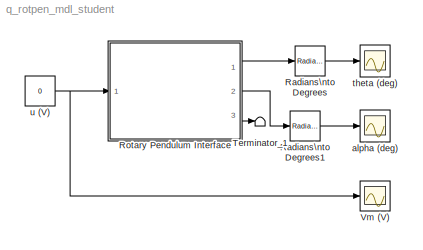
MODEL q_rotpen_mdl_student
KIND model
CONFIG PostLoadFcn = qc_set_target_type(getConfigSet(bdroot, 'QUARC Default Target Configuration'));
BLOCK [Reference] Radians\nto Degrees  REF=simulink_extras/Transformations/Radians\nto Degrees
  Ports = [1, 1]
  SID = 2
  SourceBlock = simulink_extras/Transformations/Radians\nto Degrees
  SourceProductBaseCode = SL
  SourceProductName = Simulink
  SourceType = RadiansToDegrees
BLOCK [Reference] Radians\nto Degrees1  REF=simulink_extras/Transformations/Radians\nto Degrees
  Ports = [1, 1]
  SID = 3
  SourceBlock = simulink_extras/Transformations/Radians\nto Degrees
  SourceProductBaseCode = SL
  SourceProductName = Simulink
  SourceType = RadiansToDegrees
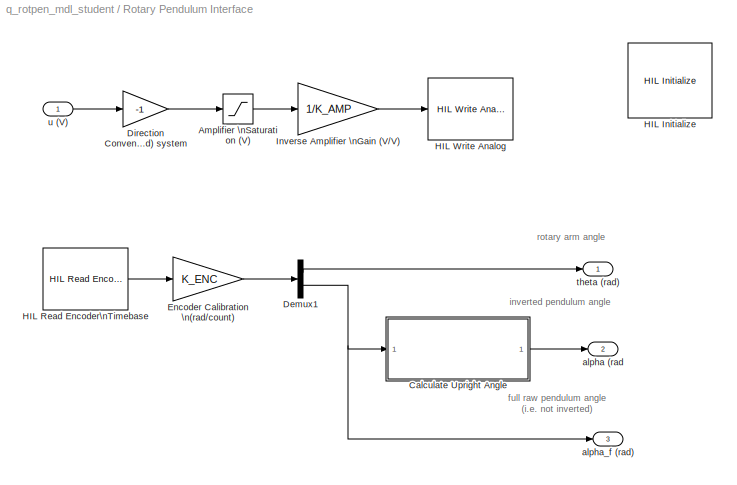
BLOCK [SubSystem] Rotary Pendulum Interface
  Ports = [1, 3]
  RequestExecContextInheritance = off
  SID = 36
BLOCK [Saturate] Rotary Pendulum Interface/Amplifier \nSaturation (V)
  InputPortMap = u0
  LowerLimit = -5
  Ports = [1, 1]
  SID = 38
  UpperLimit = 5
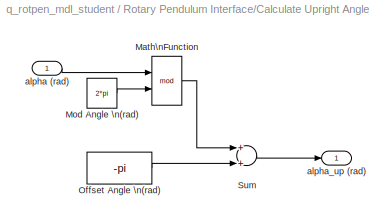
BLOCK [SubSystem] Rotary Pendulum Interface/Calculate Upright Angle
  Ports = [1, 1]
  RequestExecContextInheritance = off
  SID = 39
BLOCK [Math] Rotary Pendulum Interface/Calculate Upright Angle/Math\nFunction
  Operator = mod
  Ports = [2, 1]
  SID = 41
BLOCK [Constant] Rotary Pendulum Interface/Calculate Upright Angle/Mod Angle \n(rad)
  SID = 42
  Value = 2*pi
BLOCK [Constant] Rotary Pendulum Interface/Calculate Upright Angle/Offset Angle \n(rad)
  SID = 43
  Value = -pi
BLOCK [Sum] Rotary Pendulum Interface/Calculate Upright Angle/Sum
  Ports = [2, 1]
  SID = 44
BLOCK [Inport] Rotary Pendulum Interface/Calculate Upright Angle/alpha (rad)
  IconDisplay = Port number
  SID = 40
BLOCK [Outport] Rotary Pendulum Interface/Calculate Upright Angle/alpha_up (rad)
  IconDisplay = Port number
  SID = 45
BLOCK [Demux] Rotary Pendulum Interface/Demux1
  DisplayOption = bar
  Outputs = 2
  Ports = [1, 2]
  SID = 46
BLOCK [Gain] Rotary Pendulum Interface/Direction Convention:\n(Right-Hand) system
  Gain = -1
  SID = 47
BLOCK [Gain] Rotary Pendulum Interface/Encoder Calibration \n(rad//count)
  Gain = K_ENC
  SID = 48
BLOCK [Reference] Rotary Pendulum Interface/HIL Initialize  REF=quarc_library/Data Acquisition/Generic/Configuration/HIL Initialize
  AttributesFormatString = %<object_name> (%<board_type>-%<board_number>)
  MultiThreadCoSim = auto
  Ports = []
  SID = 49
  SourceBlock = quarc_library/Data Acquisition/Generic/Configuration/HIL Initialize
  SourceProductName = QUARC Targets
  SourceType = HIL Initialize
  UserData = DataTag0
  UserDataPersistent = on
  active = off
  analog_input_channels = [0:1]
  analog_input_configurations = []
  analog_input_maximums = 10
  analog_input_minimums = -10
  analog_output_channels = [0:1]
  analog_output_maximums = 10
  analog_output_minimums = -10
  board_number = 0
  board_options = d0=digital;d1=digital;led=auto;update_rate=normal;decimation=1
  board_type = q2_usb
  clock_modes = []
  digital_input_channels = []
  digital_output_channels = []
  digital_output_configuration = []
  encoder_channels = [0:1]
  encoder_filter_frequency = []
  exclusive = off
  final_analog_outputs = [0]
  final_digital_outputs = [1]
  final_other_outputs = []
  final_pwm_outputs = [0]
  hardware_clocks = [0]
  initial_analog_outputs = [0]
  initial_clock_frequencies = []
  initial_digital_outputs = [1]
  initial_encoder_counts = [0]
  initial_other_outputs = []
  initial_pwm_outputs = [0]
  object_name = HIL-1
  other_output_channels = []
  pwm_alignment = []
  pwm_channels = []
  pwm_configuration = []
  pwm_frequency = 1/0.020
  pwm_leading_deadband = []
  pwm_modes = [0]
  pwm_polarity = []
  pwm_trailing_deadband = []
  quadrature = [4]
  set_analog_input_params_at_start = on
  set_analog_input_params_at_switch_in = off
  set_analog_output_params_at_start = on
  set_analog_output_params_at_switch_in = off
  set_analog_outputs_at_start = on
  set_analog_outputs_at_switch_in = off
  set_analog_outputs_at_switch_out = off
  set_analog_outputs_at_terminate = on
  set_analog_outputs_on_watchdog = off
  set_clock_frequencies_at_start = off
  set_clock_frequencies_at_switch_in = off
  set_clock_params_at_start = off
  set_clock_params_at_switch_in = off
  set_digital_output_params_at_start = off
  set_digital_output_params_at_switch_in = off
  set_digital_outputs_at_start = on
  set_digital_outputs_at_switch_in = off
  set_digital_outputs_at_switch_out = off
  set_digital_outputs_at_terminate = on
  set_digital_outputs_on_watchdog = off
  set_encoder_counts_at_start = on
  set_encoder_counts_at_switch_in = off
  set_encoder_params_at_start = on
  set_encoder_params_at_switch_in = off
  set_other_outputs_at_start = off
  set_other_outputs_at_switch_in = off
  set_other_outputs_at_switch_out = off
  set_other_outputs_at_terminate = off
  set_other_outputs_on_watchdog = off
  set_pwm_outputs_at_start = on
  set_pwm_outputs_at_switch_in = off
  set_pwm_outputs_at_switch_out = off
  set_pwm_outputs_at_terminate = on
  set_pwm_outputs_on_watchdog = off
  set_pwm_params_at_start = on
  set_pwm_params_at_switch_in = off
  watchdog_analog_outputs = 0
  watchdog_digital_outputs = [1]
  watchdog_other_outputs = []
  watchdog_pwm_outputs = [0]
BLOCK [Reference] Rotary Pendulum Interface/HIL Read Encoder\nTimebase  REF=quarc_library/Data Acquisition/Generic/Timebases/HIL Read Encoder\nTimebase
  AttributesFormatString = (%<object_name>)
  MultiThreadCoSim = auto
  Ports = [0, 1]
  SID = 50
  SourceBlock = quarc_library/Data Acquisition/Generic/Timebases/HIL Read Encoder\nTimebase
  SourceProductName = QUARC Targets
  SourceType = HIL Read Encoder Timebase
  UserData = DataTag1
  UserDataPersistent = on
  active = on
  channels = [0:1]
  clock = 0
  data_type = double
  data_type_mode = Inherit via back propagation
  object_name = HIL-1
  samples_in_buffer = max(ceil(1/qc_get_step_size), 1)
  vector_output = on
BLOCK [Reference] Rotary Pendulum Interface/HIL Write Analog  REF=quarc_library/Data Acquisition/Generic/Immediate I//O/HIL Write Analog
  AttributesFormatString = (%<object_name>)
  MultiThreadCoSim = auto
  Ports = [1]
  SID = 51
  SourceBlock = quarc_library/Data Acquisition/Generic/Immediate I//O/HIL Write Analog
  SourceProductName = QUARC Targets
  SourceType = HIL Write Analog
  UserData = DataTag2
  UserDataPersistent = on
  active = off
  channels = 0
  object_name = HIL-1
  sample_time = -1
  vector_input = off
BLOCK [Gain] Rotary Pendulum Interface/Inverse Amplifier \nGain (V//V)
  Gain = 1/K_AMP
  OutDataTypeStr = Inherit: Inherit via internal rule
  ParamDataTypeStr = Inherit: Inherit via internal rule
  SID = 52
  SaturateOnIntegerOverflow = off
BLOCK [Outport] Rotary Pendulum Interface/alpha (rad
  IconDisplay = Port number
  Port = 2
  SID = 54
BLOCK [Outport] Rotary Pendulum Interface/alpha_f (rad)
  IconDisplay = Port number
  Port = 3
  SID = 55
BLOCK [Outport] Rotary Pendulum Interface/theta (rad)
  IconDisplay = Port number
  SID = 53
BLOCK [Inport] Rotary Pendulum Interface/u (V)
  IconDisplay = Port number
  SID = 37
BLOCK [Terminator] Terminator_1
  SID = 26
BLOCK [Scope] Vm (V)
  Floating = off
  NumInputPorts = 1
  Ports = [1]
  SID = 27
  ScopeSpecificationString = Simulink.scopes.TimeScopeBlockCfg('CurrentConfiguration', extmgr.ConfigurationSet(extmgr.Configuration('Core','General UI',true),extmgr.Configuration('Core','Source UI',true),extmgr.Configuration('Sources','WiredSimulink',true,'DataLogging',true,'DataLoggingVariableName','data_Vm','DataLoggingSaveFormat','Array','DataLoggingLimitDataPoints',true,'DataLoggingDecimation','1','DataLoggingDecimateData...<+1030ch>
BLOCK [Scope] alpha (deg)
  Floating = off
  NumInputPorts = 1
  Ports = [1]
  SID = 28
  ScopeSpecificationString = Simulink.scopes.TimeScopeBlockCfg('CurrentConfiguration', extmgr.ConfigurationSet(extmgr.Configuration('Core','General UI',true),extmgr.Configuration('Core','Source UI',true),extmgr.Configuration('Sources','WiredSimulink',true,'DataLogging',true,'DataLoggingVariableName','data_alpha','DataLoggingSaveFormat','Array','DataLoggingLimitDataPoints',true,'DataLoggingDecimation','1','DataLoggingDecimateD...<+1735ch>
BLOCK [Scope] theta (deg)
  Floating = off
  NumInputPorts = 1
  Ports = [1]
  SID = 29
  ScopeSpecificationString = Simulink.scopes.TimeScopeBlockCfg('CurrentConfiguration', extmgr.ConfigurationSet(extmgr.Configuration('Core','General UI',true),extmgr.Configuration('Core','Source UI',true),extmgr.Configuration('Sources','WiredSimulink',true,'DataLogging',true,'DataLoggingVariableName','data_theta','DataLoggingSaveFormat','Array','DataLoggingLimitDataPoints',true,'DataLoggingDecimation','1','DataLoggingDecimateD...<+1684ch>
BLOCK [Constant] u (V)
  SID = 30
  Value = 0
ANNOTATION Rotary Pendulum Interface: full raw pendulum angle\n (i.e. not inverted)
ANNOTATION Rotary Pendulum Interface: inverted pendulum angle
ANNOTATION Rotary Pendulum Interface: rotary arm angle
LINE Radians\nto Degrees1:1 -> alpha (deg):1
LINE Radians\nto Degrees:1 -> theta (deg):1
LINE Rotary Pendulum Interface/Amplifier \nSaturation (V):1 -> Rotary Pendulum Interface/Inverse Amplifier \nGain (V//V):1
LINE Rotary Pendulum Interface/Calculate Upright Angle/Math\nFunction:1 -> Rotary Pendulum Interface/Calculate Upright Angle/Sum:1
LINE Rotary Pendulum Interface/Calculate Upright Angle/Mod Angle \n(rad):1 -> Rotary Pendulum Interface/Calculate Upright Angle/Math\nFunction:2
LINE Rotary Pendulum Interface/Calculate Upright Angle/Offset Angle \n(rad):1 -> Rotary Pendulum Interface/Calculate Upright Angle/Sum:2
LINE Rotary Pendulum Interface/Calculate Upright Angle/Sum:1 -> Rotary Pendulum Interface/Calculate Upright Angle/alpha_up (rad):1
LINE Rotary Pendulum Interface/Calculate Upright Angle/alpha (rad):1 -> Rotary Pendulum Interface/Calculate Upright Angle/Math\nFunction:1
LINE Rotary Pendulum Interface/Calculate Upright Angle:1 -> Rotary Pendulum Interface/alpha (rad:1
LINE Rotary Pendulum Interface/Demux1:1 -> Rotary Pendulum Interface/theta (rad):1
NET Rotary Pendulum Interface/Demux1:2 -> Rotary Pendulum Interface/Calculate Upright Angle:1, Rotary Pendulum Interface/alpha_f (rad):1
LINE Rotary Pendulum Interface/Direction Convention:\n(Right-Hand) system:1 -> Rotary Pendulum Interface/Amplifier \nSaturation (V):1
LINE Rotary Pendulum Interface/Encoder Calibration \n(rad//count):1 -> Rotary Pendulum Interface/Demux1:1
LINE Rotary Pendulum Interface/HIL Read Encoder\nTimebase:1 -> Rotary Pendulum Interface/Encoder Calibration \n(rad//count):1
LINE Rotary Pendulum Interface/Inverse Amplifier \nGain (V//V):1 -> Rotary Pendulum Interface/HIL Write Analog:1
LINE Rotary Pendulum Interface/u (V):1 -> Rotary Pendulum Interface/Direction Convention:\n(Right-Hand) system:1
LINE Rotary Pendulum Interface:1 -> Radians\nto Degrees:1
LINE Rotary Pendulum Interface:2 -> Radians\nto Degrees1:1
LINE Rotary Pendulum Interface:3 -> Terminator_1:1
NET u (V):1 -> Rotary Pendulum Interface:1, Vm (V):1
note: NET lines group one-source signal fan-out (src -> all destinations, sorted); 1:1 wires keep LINE
